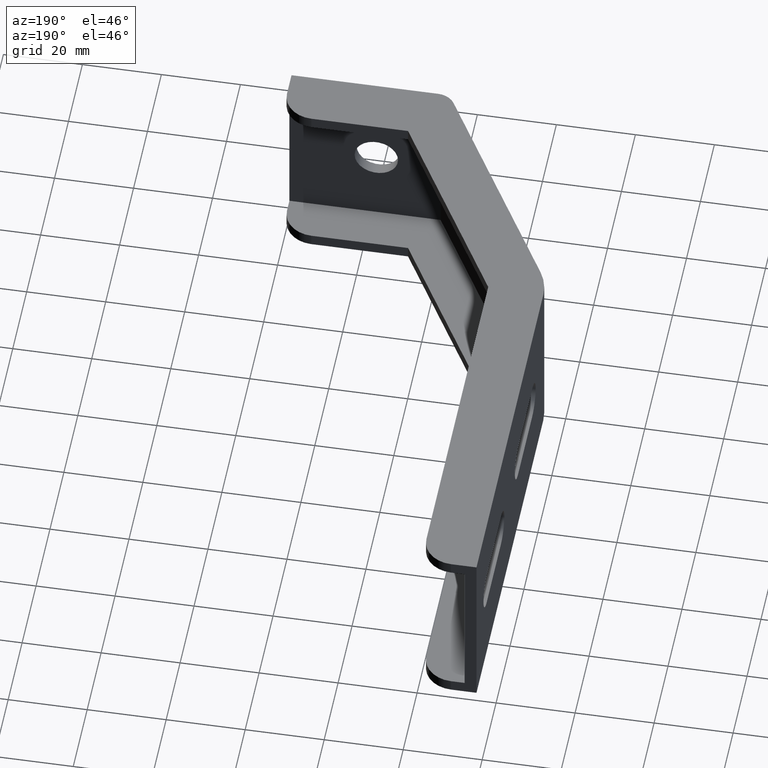
[diagram: clean part render]
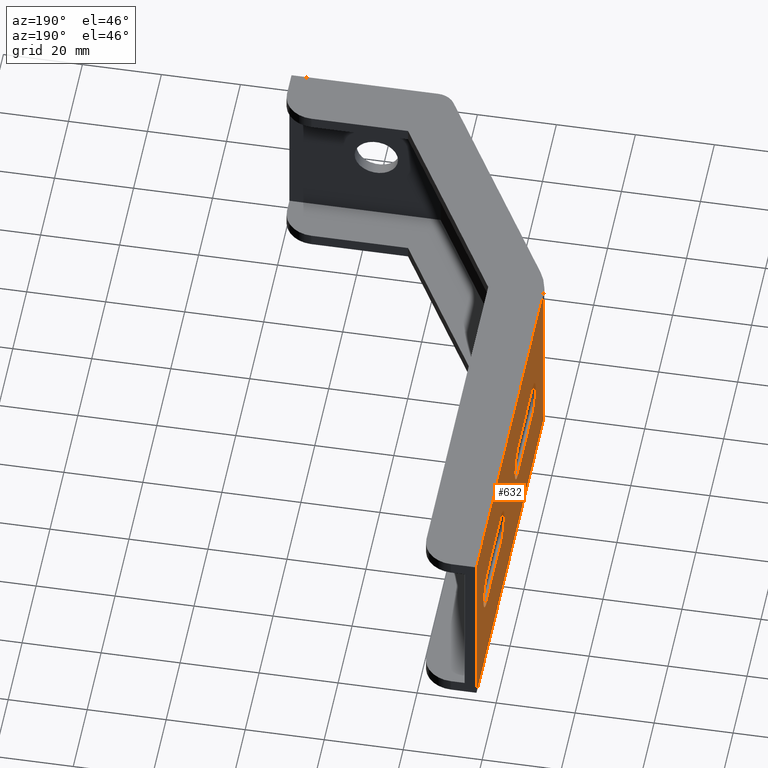
[diagram: same view with one face highlighted and labeled with its STEP entity id]
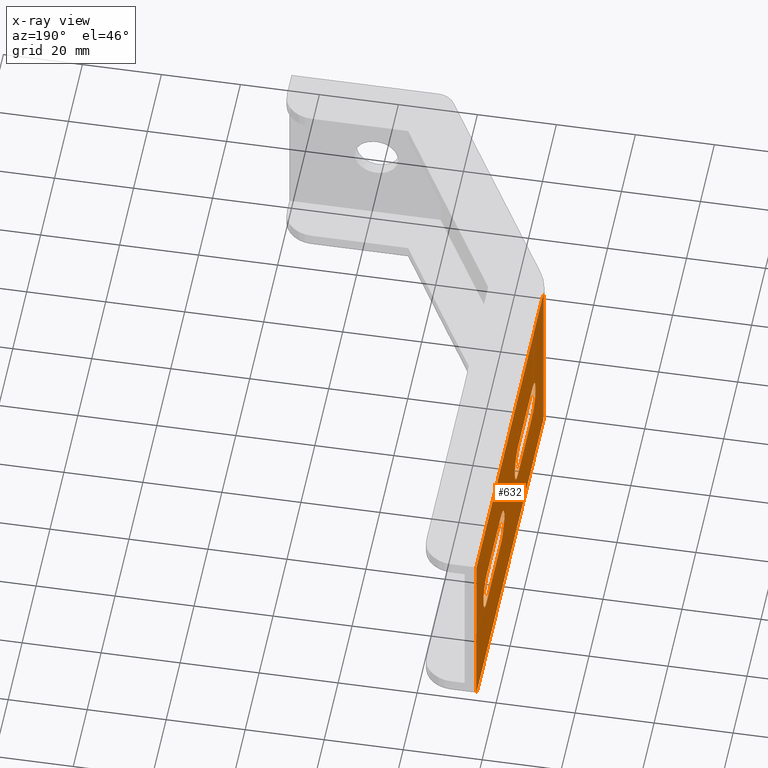
[diagram: x-ray of the same camera — body ghosted, the highlighted face saturated]
A machine part, auxiliary view. The second image highlights one B-rep face of the part: STEP entity #632.
The next image is the same camera in x-ray: the body ghosted, the highlighted face saturated — about 0% of this face is hidden behind the body in this view.
In plain terms, the highlighted planar face has unit normal (-1, 0, 0).
Its self-contained STEP definition (entity closure, byte-faithful):
#16=FACE_BOUND('',#83,.T.);
#17=FACE_BOUND('',#84,.T.);
#24=PLANE('',#674);
#48=FACE_OUTER_BOUND('',#82,.T.);
#82=EDGE_LOOP('',(#458,#459,#460,#461));
#83=EDGE_LOOP('',(#462,#463,#464,#465));
#84=EDGE_LOOP('',(#466,#467,#468,#469));
#123=LINE('',#924,#193);
#129=LINE('',#942,#199);
#131=LINE('',#946,#201);
#132=LINE('',#947,#202);
#133=LINE('',#950,#203);
#134=LINE('',#954,#204);
#135=LINE('',#960,#205);
#136=LINE('',#963,#206);
#193=VECTOR('',#740,95.9671881654047);
#199=VECTOR('',#754,45.);
#201=VECTOR('',#758,95.9671881654047);
#202=VECTOR('',#759,45.);
#203=VECTOR('',#760,20.);
#204=VECTOR('',#763,20.);
#205=VECTOR('',#768,20.);
#206=VECTOR('',#771,20.);
#264=CIRCLE('',#675,5.);
#265=CIRCLE('',#676,5.);
#266=CIRCLE('',#677,5.);
#267=CIRCLE('',#678,5.);
#287=VERTEX_POINT('',#921);
#288=VERTEX_POINT('',#923);
#296=VERTEX_POINT('',#940);
#297=VERTEX_POINT('',#945);
#298=VERTEX_POINT('',#948);
#299=VERTEX_POINT('',#949);
#300=VERTEX_POINT('',#951);
#301=VERTEX_POINT('',#953);
#302=VERTEX_POINT('',#956);
#303=VERTEX_POINT('',#957);
#304=VERTEX_POINT('',#959);
#305=VERTEX_POINT('',#961);
#351=EDGE_CURVE('',#287,#288,#123,.T.);
#360=EDGE_CURVE('',#296,#287,#129,.T.);
#362=EDGE_CURVE('',#297,#296,#131,.T.);
#363=EDGE_CURVE('',#297,#288,#132,.T.);
#364=EDGE_CURVE('',#298,#299,#133,.T.);
#365=EDGE_CURVE('',#299,#300,#264,.T.);
#366=EDGE_CURVE('',#300,#301,#134,.T.);
#367=EDGE_CURVE('',#301,#298,#265,.T.);
#368=EDGE_CURVE('',#302,#303,#266,.T.);
#369=EDGE_CURVE('',#303,#304,#135,.T.);
#370=EDGE_CURVE('',#304,#305,#267,.T.);
#371=EDGE_CURVE('',#305,#302,#136,.T.);
#458=ORIENTED_EDGE('',*,*,#360,.F.);
#459=ORIENTED_EDGE('',*,*,#362,.F.);
#460=ORIENTED_EDGE('',*,*,#363,.T.);
#461=ORIENTED_EDGE('',*,*,#351,.F.);
#462=ORIENTED_EDGE('',*,*,#364,.T.);
#463=ORIENTED_EDGE('',*,*,#365,.T.);
#464=ORIENTED_EDGE('',*,*,#366,.T.);
#465=ORIENTED_EDGE('',*,*,#367,.T.);
#466=ORIENTED_EDGE('',*,*,#368,.T.);
#467=ORIENTED_EDGE('',*,*,#369,.T.);
#468=ORIENTED_EDGE('',*,*,#370,.T.);
#469=ORIENTED_EDGE('',*,*,#371,.T.);
#632=ADVANCED_FACE('',(#48,#16,#17),#24,.T.);
#674=AXIS2_PLACEMENT_3D('',#944,#756,#757);
#675=AXIS2_PLACEMENT_3D('',#952,#761,#762);
#676=AXIS2_PLACEMENT_3D('',#955,#764,#765);
#677=AXIS2_PLACEMENT_3D('',#958,#766,#767);
#678=AXIS2_PLACEMENT_3D('',#962,#769,#770);
#740=DIRECTION('',(0.,1.,0.));
#754=DIRECTION('',(0.,0.,-1.));
#756=DIRECTION('center_axis',(-1.,0.,0.));
#757=DIRECTION('ref_axis',(0.,-1.,0.));
#758=DIRECTION('',(0.,-1.,0.));
#759=DIRECTION('',(0.,0.,-1.));
#760=DIRECTION('',(0.,-1.,-1.55782017113356E-16));
#761=DIRECTION('center_axis',(1.,0.,0.));
#762=DIRECTION('ref_axis',(0.,4.47597146508407E-17,-1.));
#763=DIRECTION('',(0.,1.,2.66804319575872E-16));
#764=DIRECTION('center_axis',(1.,0.,0.));
#765=DIRECTION('ref_axis',(0.,-4.47597146508407E-17,1.));
#766=DIRECTION('center_axis',(1.,0.,0.));
#767=DIRECTION('ref_axis',(0.,-4.47597146508408E-17,1.));
#768=DIRECTION('',(0.,-1.,-1.55782017113356E-16));
#769=DIRECTION('center_axis',(1.,0.,0.));
#770=DIRECTION('ref_axis',(0.,4.47597146508408E-17,-1.));
#771=DIRECTION('',(0.,1.,4.47597146508407E-17));
#921=CARTESIAN_POINT('',(-75.0444887501913,64.0328118345953,-22.5));
#923=CARTESIAN_POINT('',(-75.0444887501913,160.,-22.5));
#924=CARTESIAN_POINT('',(-75.0444887501913,160.,-22.5));
#940=CARTESIAN_POINT('',(-75.0444887501913,64.0328118345953,22.5));
#942=CARTESIAN_POINT('',(-75.0444887501913,64.0328118345953,0.));
#944=CARTESIAN_POINT('Origin',(-75.0444887501913,160.,0.));
#945=CARTESIAN_POINT('',(-75.0444887501913,160.,22.5));
#946=CARTESIAN_POINT('',(-75.0444887501913,160.,22.5));
#947=CARTESIAN_POINT('',(-75.0444887501913,160.,0.));
#948=CARTESIAN_POINT('',(-75.0444887501913,145.,5.00000000000001));
#949=CARTESIAN_POINT('',(-75.0444887501913,125.,5.));
#950=CARTESIAN_POINT('',(-75.0444887501913,142.5,5.00000000000001));
#951=CARTESIAN_POINT('',(-75.0444887501913,125.,-5.));
#952=CARTESIAN_POINT('Origin',(-75.0444887501913,125.,6.66133814775094E-15));
#953=CARTESIAN_POINT('',(-75.0444887501913,145.,-4.99999999999999));
#954=CARTESIAN_POINT('',(-75.0444887501913,152.5,-4.99999999999999));
#955=CARTESIAN_POINT('Origin',(-75.0444887501913,145.,6.66133814775094E-15));
#956=CARTESIAN_POINT('',(-75.0444887501913,100.,-5.00000372864353));
#957=CARTESIAN_POINT('',(-75.0444887501913,100.,4.99999627135647));
#958=CARTESIAN_POINT('Origin',(-75.0444887501913,100.,-2.22044604925031E-15));
#959=CARTESIAN_POINT('',(-75.0444887501913,80.,4.99999627135646));
#960=CARTESIAN_POINT('',(-75.0444887501913,120.,4.99999627135647));
#961=CARTESIAN_POINT('',(-75.0444887501913,80.,-5.00000372864353));
#962=CARTESIAN_POINT('Origin',(-75.0444887501913,80.,-3.72864353614943E-6));
#963=CARTESIAN_POINT('',(-75.0444887501913,130.,-5.00000372864353));